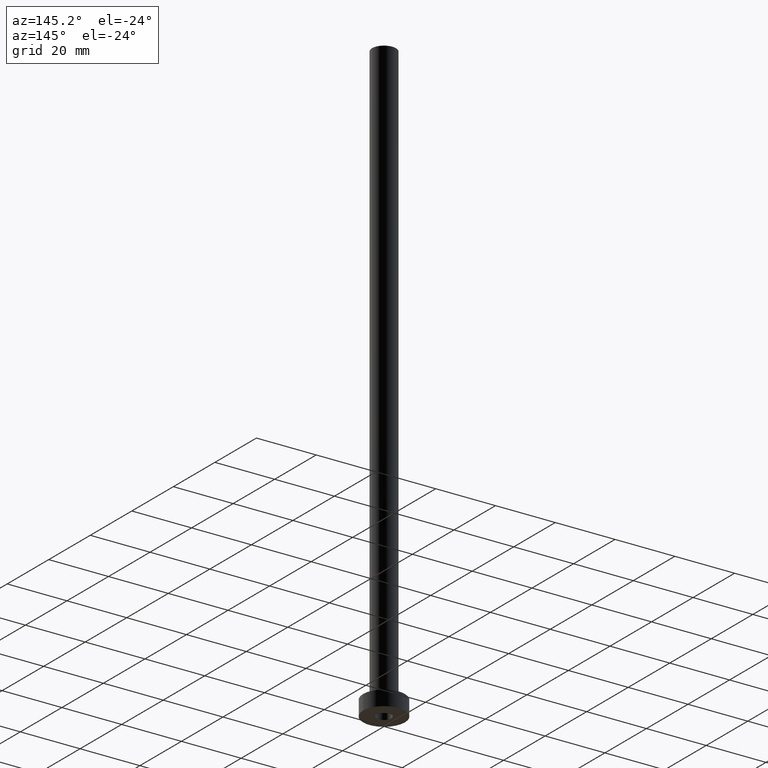
[diagram: clean part render]
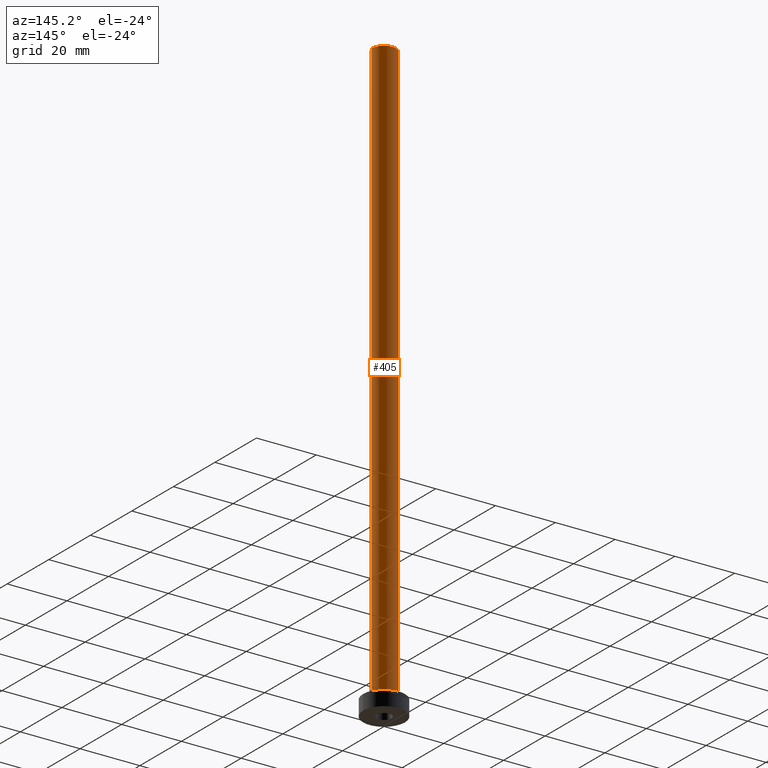
[diagram: same view with one face highlighted and labeled with its STEP entity id]
A machine part, auxiliary view. The second image highlights one B-rep face of the part: STEP entity #405.
In plain terms, the highlighted cylindrical surface (edge-blend (fillet) strip) has radius 4 mm, axis along (-0, -0, -1).
Its self-contained STEP definition (entity closure, byte-faithful):
#5 = CARTESIAN_POINT ( 'NONE',  ( -4.000000000000000000, 0.000000000000000000, 200.0000000000000000 ) ) ;
#15 = VERTEX_POINT ( 'NONE', #35 ) ;
#19 = VERTEX_POINT ( 'NONE', #49 ) ;
#20 = CARTESIAN_POINT ( 'NONE',  ( 0.000000000000000000, 0.000000000000000000, 200.0000000000000000 ) ) ;
#28 = DIRECTION ( 'NONE',  ( -1.000000000000000000, 0.000000000000000000, 0.000000000000000000 ) ) ;
#35 = CARTESIAN_POINT ( 'NONE',  ( -4.000000000000000000, 0.000000000000000000, 200.0000000000000000 ) ) ;
#47 = CIRCLE ( 'NONE', #214, 4.000000000000000000 ) ;
#49 = CARTESIAN_POINT ( 'NONE',  ( 4.000000000000000000, 4.898587196589412829E-16, 5.500000000000005329 ) ) ;
#97 = DIRECTION ( 'NONE',  ( 0.000000000000000000, 0.000000000000000000, 1.000000000000000000 ) ) ;
#111 = CIRCLE ( 'NONE', #250, 4.000000000000000000 ) ;
#138 = CYLINDRICAL_SURFACE ( 'NONE', #354, 4.000000000000000000 ) ;
#141 = ORIENTED_EDGE ( 'NONE', *, *, #316, .T. ) ;
#167 = EDGE_CURVE ( 'NONE', #245, #15, #111, .T. ) ;
#175 = DIRECTION ( 'NONE',  ( -0.000000000000000000, -0.000000000000000000, -1.000000000000000000 ) ) ;
#203 = DIRECTION ( 'NONE',  ( -0.000000000000000000, -0.000000000000000000, -1.000000000000000000 ) ) ;
#214 = AXIS2_PLACEMENT_3D ( 'NONE', #269, #97, #332 ) ;
#238 = EDGE_CURVE ( 'NONE', #19, #396, #47, .T. ) ;
#243 = EDGE_LOOP ( 'NONE', ( #328, #141, #374, #275 ) ) ;
#245 = VERTEX_POINT ( 'NONE', #435 ) ;
#250 = AXIS2_PLACEMENT_3D ( 'NONE', #20, #297, #370 ) ;
#269 = CARTESIAN_POINT ( 'NONE',  ( 0.000000000000000000, 0.000000000000000000, 5.500000000000005329 ) ) ;
#270 = VECTOR ( 'NONE', #175, 1000.000000000000000 ) ;
#275 = ORIENTED_EDGE ( 'NONE', *, *, #361, .F. ) ;
#285 = VECTOR ( 'NONE', #431, 1000.000000000000000 ) ;
#291 = CARTESIAN_POINT ( 'NONE',  ( 4.000000000000000000, 4.898587196589412829E-16, 200.0000000000000000 ) ) ;
#295 = LINE ( 'NONE', #291, #285 ) ;
#297 = DIRECTION ( 'NONE',  ( 0.000000000000000000, 0.000000000000000000, 1.000000000000000000 ) ) ;
#316 = EDGE_CURVE ( 'NONE', #245, #19, #295, .T. ) ;
#321 = LINE ( 'NONE', #5, #270 ) ;
#328 = ORIENTED_EDGE ( 'NONE', *, *, #167, .F. ) ;
#332 = DIRECTION ( 'NONE',  ( 1.000000000000000000, 0.000000000000000000, 0.000000000000000000 ) ) ;
#339 = CARTESIAN_POINT ( 'NONE',  ( -4.000000000000000000, 0.000000000000000000, 5.500000000000005329 ) ) ;
#354 = AXIS2_PLACEMENT_3D ( 'NONE', #421, #203, #28 ) ;
#361 = EDGE_CURVE ( 'NONE', #15, #396, #321, .T. ) ;
#370 = DIRECTION ( 'NONE',  ( 1.000000000000000000, 0.000000000000000000, 0.000000000000000000 ) ) ;
#374 = ORIENTED_EDGE ( 'NONE', *, *, #238, .T. ) ;
#396 = VERTEX_POINT ( 'NONE', #339 ) ;
#405 = ADVANCED_FACE ( 'NONE', ( #451 ), #138, .T. ) ;
#421 = CARTESIAN_POINT ( 'NONE',  ( 0.000000000000000000, 0.000000000000000000, 200.0000000000000000 ) ) ;
#431 = DIRECTION ( 'NONE',  ( -0.000000000000000000, -0.000000000000000000, -1.000000000000000000 ) ) ;
#435 = CARTESIAN_POINT ( 'NONE',  ( 4.000000000000000000, 4.898587196589412829E-16, 200.0000000000000000 ) ) ;
#451 = FACE_OUTER_BOUND ( 'NONE', #243, .T. ) ;